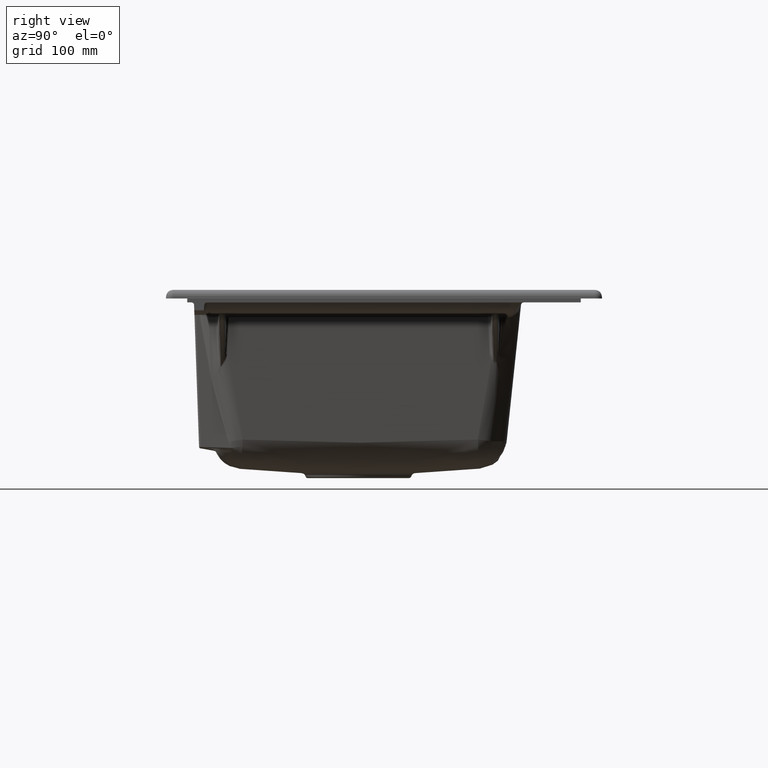
[diagram: clean part render]
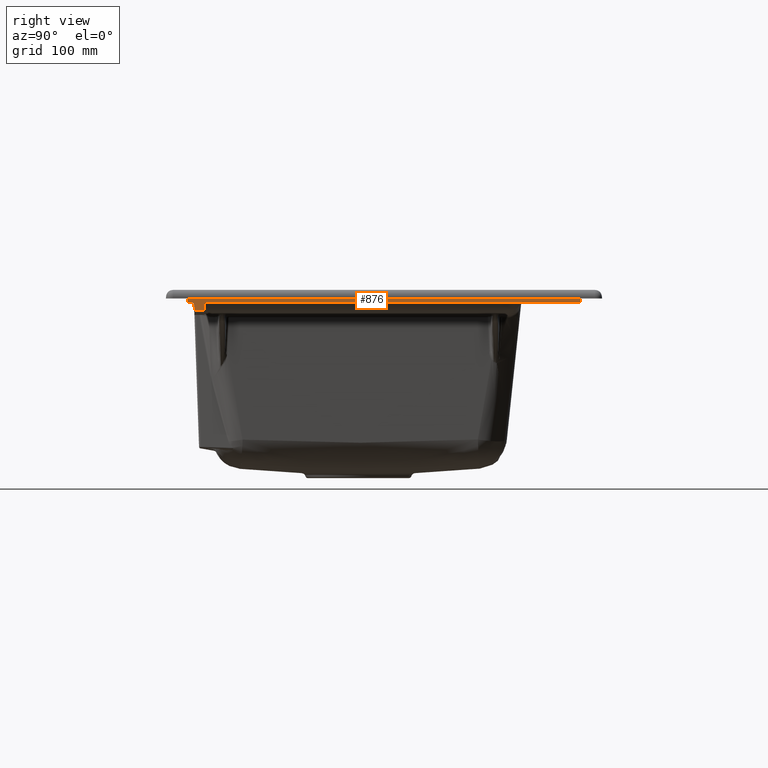
[diagram: same view with one face highlighted and labeled with its STEP entity id]
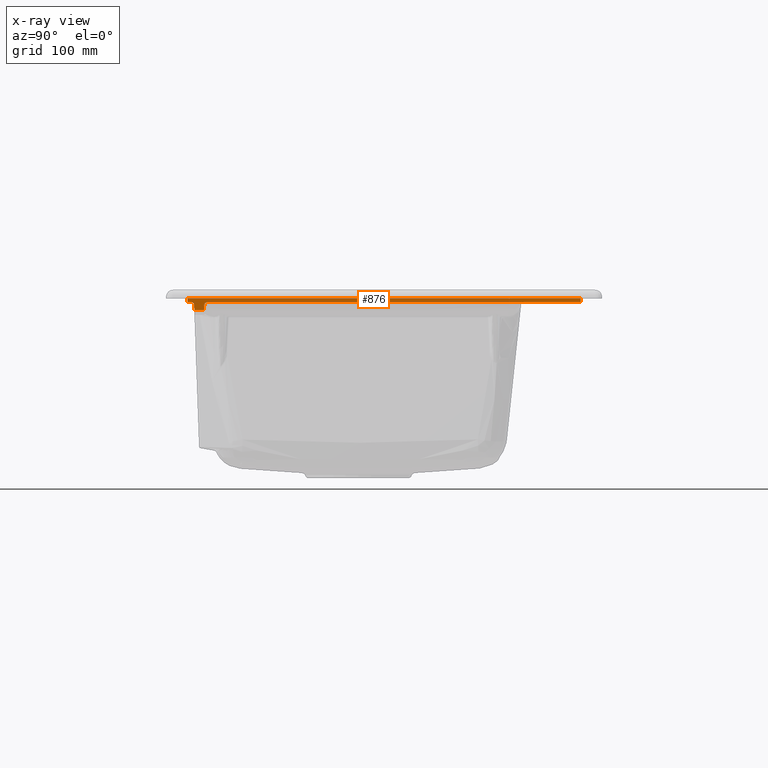
[diagram: x-ray of the same camera — body ghosted, the highlighted face saturated]
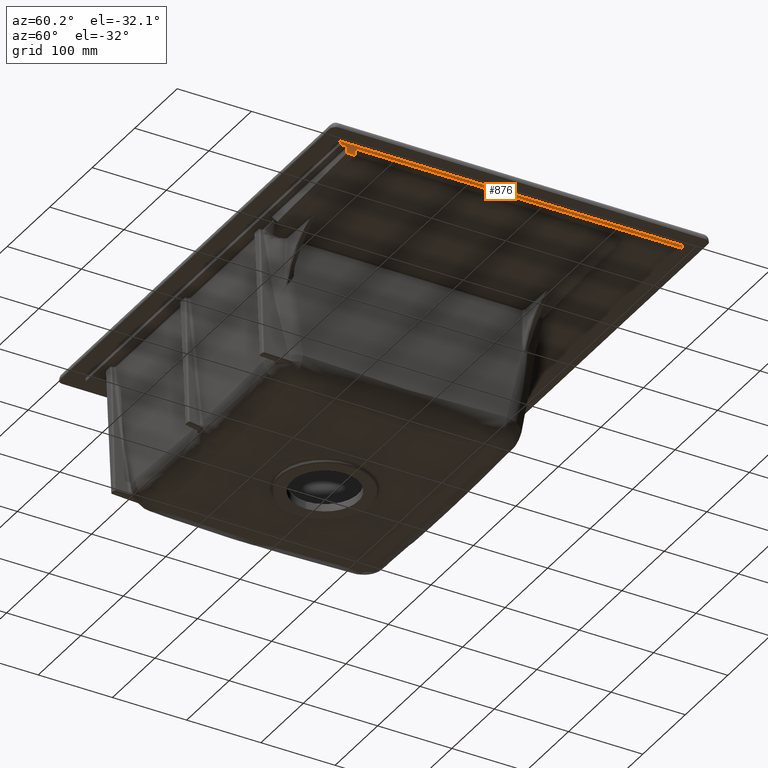
[diagram: same view with one face highlighted and labeled with its STEP entity id]
A machine part, right view. The second image highlights one B-rep face of the part: STEP entity #876.
The next image is the same camera in x-ray: the body ghosted, the highlighted face saturated — about 0% of this face is hidden behind the body in this view.
A second angle (auxiliary view) of the same face is appended — the face is thin or edge-on in the first view.
In plain terms, the highlighted planar face has unit normal (-1, 0, 0).
Its self-contained STEP definition (entity closure, byte-faithful):
#246=LINE('',#8664,#324);
#248=LINE('',#8680,#326);
#252=LINE('',#8688,#330);
#277=LINE('',#17519,#355);
#280=LINE('',#17525,#358);
#281=LINE('',#17527,#359);
#282=LINE('',#17528,#360);
#324=VECTOR('',#4317,1.);
#326=VECTOR('',#4321,1.);
#330=VECTOR('',#4325,1.);
#355=VECTOR('',#4832,1.);
#358=VECTOR('',#4837,1.);
#359=VECTOR('',#4840,1.);
#360=VECTOR('',#4841,1.);
#586=CIRCLE('',#4179,3.);
#876=ADVANCED_FACE('',(#1165),#913,.F.);
#913=PLANE('',#4189);
#1165=FACE_OUTER_BOUND('',#1434,.T.);
#1434=EDGE_LOOP('',(#2592,#2593,#2594,#2595,#2596,#2597,#2598,#2599,#2600,
#2601));
#2592=ORIENTED_EDGE('',*,*,#3170,.T.);
#2593=ORIENTED_EDGE('',*,*,#3561,.T.);
#2594=ORIENTED_EDGE('',*,*,#3273,.T.);
#2595=ORIENTED_EDGE('',*,*,#3531,.F.);
#2596=ORIENTED_EDGE('',*,*,#3177,.F.);
#2597=ORIENTED_EDGE('',*,*,#3560,.T.);
#2598=ORIENTED_EDGE('',*,*,#3562,.T.);
#2599=ORIENTED_EDGE('',*,*,#3557,.F.);
#2600=ORIENTED_EDGE('',*,*,#3173,.F.);
#2601=ORIENTED_EDGE('',*,*,#3549,.F.);
#2812=VERTEX_POINT('',#8663);
#2813=VERTEX_POINT('',#8665);
#2815=VERTEX_POINT('',#8679);
#2816=VERTEX_POINT('',#8681);
#2819=VERTEX_POINT('',#8687);
#2820=VERTEX_POINT('',#8689);
#2907=VERTEX_POINT('',#9609);
#2908=VERTEX_POINT('',#9610);
#2967=VERTEX_POINT('',#17520);
#2968=VERTEX_POINT('',#17524);
#3170=EDGE_CURVE('',#2813,#2812,#246,.T.);
#3173=EDGE_CURVE('',#2815,#2816,#248,.T.);
#3177=EDGE_CURVE('',#2819,#2820,#252,.T.);
#3273=EDGE_CURVE('',#2907,#2908,#3792,.T.);
#3531=EDGE_CURVE('',#2820,#2908,#3895,.T.);
#3549=EDGE_CURVE('',#2813,#2815,#586,.T.);
#3557=EDGE_CURVE('',#2816,#2967,#277,.T.);
#3560=EDGE_CURVE('',#2819,#2968,#280,.T.);
#3561=EDGE_CURVE('',#2812,#2907,#281,.T.);
#3562=EDGE_CURVE('',#2968,#2967,#282,.T.);
#3792=B_SPLINE_CURVE_WITH_KNOTS('',3,(#9605,#9606,#9607,#9608),
 .UNSPECIFIED.,.F.,.F.,(4,4),(0.,1.),.UNSPECIFIED.);
#3895=B_SPLINE_CURVE_WITH_KNOTS('',3,(#17190,#17191,#17192,#17193,#17194,
#17195,#17196,#17197,#17198,#17199,#17200,#17201,#17202,#17203,#17204,#17205),
 .UNSPECIFIED.,.F.,.F.,(4,3,3,3,3,4),(0.,0.225881891500415,0.451763815752526,
0.677645219222106,0.903525501413612,1.),.UNSPECIFIED.);
#4179=AXIS2_PLACEMENT_3D('',#17437,#4813,#4814);
#4189=AXIS2_PLACEMENT_3D('',#17529,#4842,#4843);
#4317=DIRECTION('',(0.,0.0348994967025,-0.999390827019096));
#4321=DIRECTION('',(0.,-1.,0.));
#4325=DIRECTION('',(0.,-1.,0.));
#4813=DIRECTION('',(1.,0.,0.));
#4814=DIRECTION('',(0.,0.,1.));
#4832=DIRECTION('',(0.,0.,1.));
#4837=DIRECTION('',(0.,0.,1.));
#4840=DIRECTION('',(0.,1.,0.));
#4841=DIRECTION('',(0.,-1.,6.03246538430824E-17));
#4842=DIRECTION('',(-1.,0.,0.));
#4843=DIRECTION('',(0.,0.,-1.));
#8663=CARTESIAN_POINT('',(386.661018804709,-191.851804221152,196.30225196907));
#8664=CARTESIAN_POINT('',(386.661018804709,-191.87840764901,197.064074467415));
#8665=CARTESIAN_POINT('',(386.66101880468,-192.070493672582,202.564698490529));
#8679=CARTESIAN_POINT('',(386.66101880468,-195.068666153639,205.460000000421));
#8680=CARTESIAN_POINT('',(386.661018804709,30.0154674628124,205.460000000422));
#8681=CARTESIAN_POINT('',(386.661018804709,-200.036209980941,205.460000000422));
#8687=CARTESIAN_POINT('',(386.661018804709,260.067144906552,205.460000000422));
#8688=CARTESIAN_POINT('',(386.661018804709,30.0154674628124,205.460000000422));
#8689=CARTESIAN_POINT('',(386.661018804709,-177.114587483711,205.460000000422));
#9605=CARTESIAN_POINT('',(386.661018804708,-182.639464407406,169.458645301944));
#9606=CARTESIAN_POINT('',(386.661018804708,-181.794949985908,180.535119803445));
#9607=CARTESIAN_POINT('',(386.661018804709,-180.95043556456,191.611594304958));
#9608=CARTESIAN_POINT('',(386.661018804709,-180.105921143362,202.688068806483));
#9609=CARTESIAN_POINT('',(386.661018804709,-180.59280118903,196.302251968318));
#9610=CARTESIAN_POINT('',(386.661018804709,-180.105921143362,202.688068806483));
#17190=CARTESIAN_POINT('',(386.661018804709,-177.114587483711,205.460000000422));
#17191=CARTESIAN_POINT('',(386.661018804709,-177.450361880945,205.460000000421));
#17192=CARTESIAN_POINT('',(386.661018804709,-177.790766815788,205.402028151709));
#17193=CARTESIAN_POINT('',(386.661018804709,-178.107613233207,205.290885029535));
#17194=CARTESIAN_POINT('',(386.661018804709,-178.424459676197,205.179741898391));
#17195=CARTESIAN_POINT('',(386.661018804709,-178.726486633862,205.012361989934));
#17196=CARTESIAN_POINT('',(386.661018804709,-178.988682885575,204.802605965889));
#17197=CARTESIAN_POINT('',(386.661018804709,-179.250878525164,204.592850431542));
#17198=CARTESIAN_POINT('',(386.661018804709,-179.480475355133,204.334933603869));
#17199=CARTESIAN_POINT('',(386.661018804709,-179.658459965354,204.050213713217));
#17200=CARTESIAN_POINT('',(386.661018804709,-179.836443701538,203.765495220752));
#17201=CARTESIAN_POINT('',(386.661018804709,-179.96772475353,203.446120983334));
#17202=CARTESIAN_POINT('',(386.661018804709,-180.041431398037,203.118538687028));
#17203=CARTESIAN_POINT('',(386.661018804709,-180.073280955703,202.976986303164));
#17204=CARTESIAN_POINT('',(386.661018804709,-180.094890823763,202.832740171136));
#17205=CARTESIAN_POINT('',(386.661018804709,-180.105921143362,202.688068806483));
#17437=CARTESIAN_POINT('',(386.66101880468,-195.068666153639,202.460000000421));
#17519=CARTESIAN_POINT('',(386.661018804709,-200.036209980941,210.000000000422));
#17520=CARTESIAN_POINT('',(386.661018804709,-200.036209980941,210.000000000422));
#17524=CARTESIAN_POINT('',(386.661018804709,260.067144906552,210.000000000421));
#17525=CARTESIAN_POINT('',(386.661018804709,260.067144906552,210.000000000421));
#17527=CARTESIAN_POINT('',(386.661018804709,-200.036209980941,196.30225196907));
#17528=CARTESIAN_POINT('',(386.661018804709,-200.036209980941,210.000000000422));
#17529=CARTESIAN_POINT('',(386.661018804709,-200.036209980941,210.000000000422));